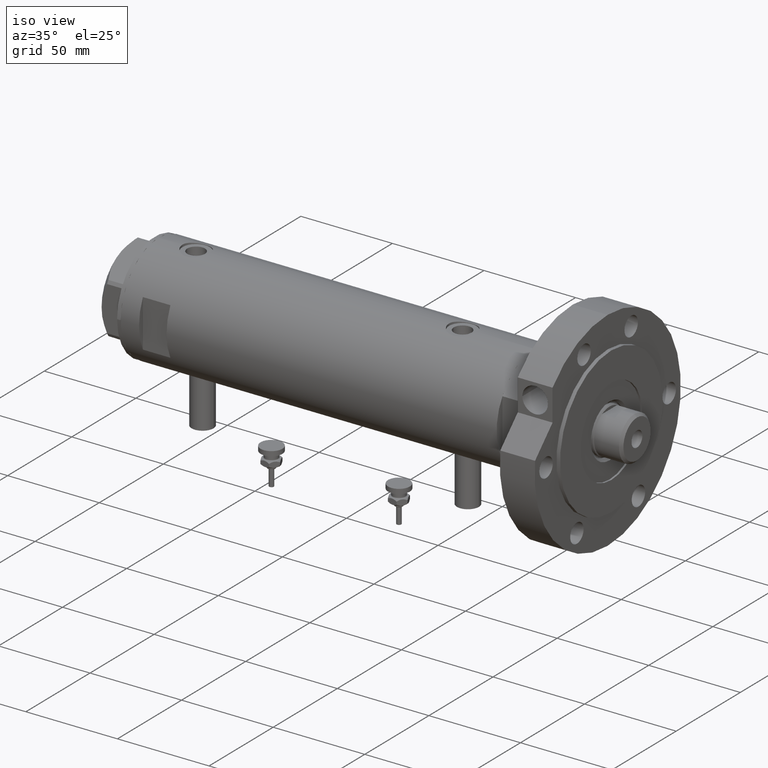
[diagram: clean part render]
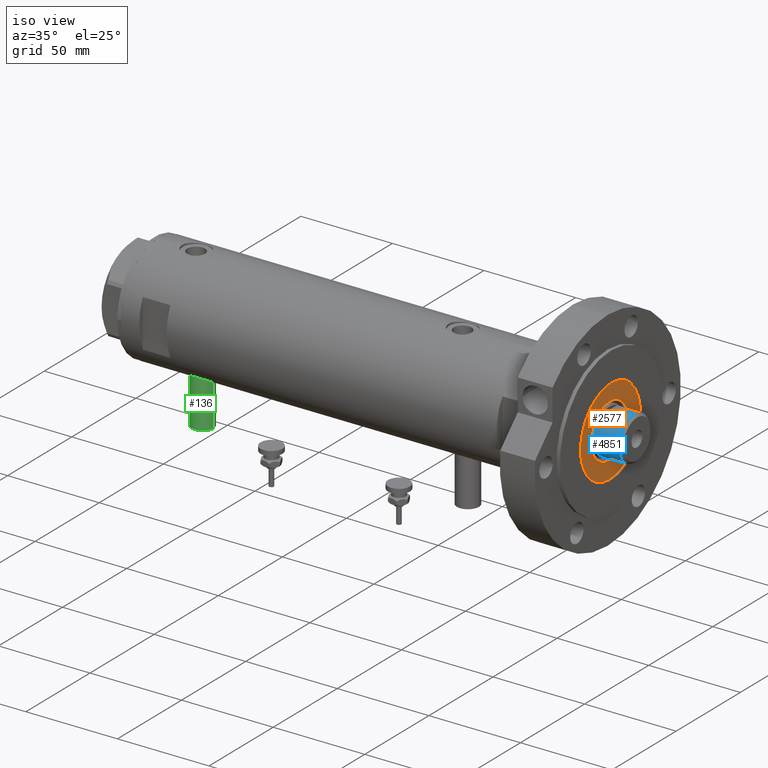
[diagram: same view with three faces highlighted in distinct colors, each labeled with its STEP entity id]
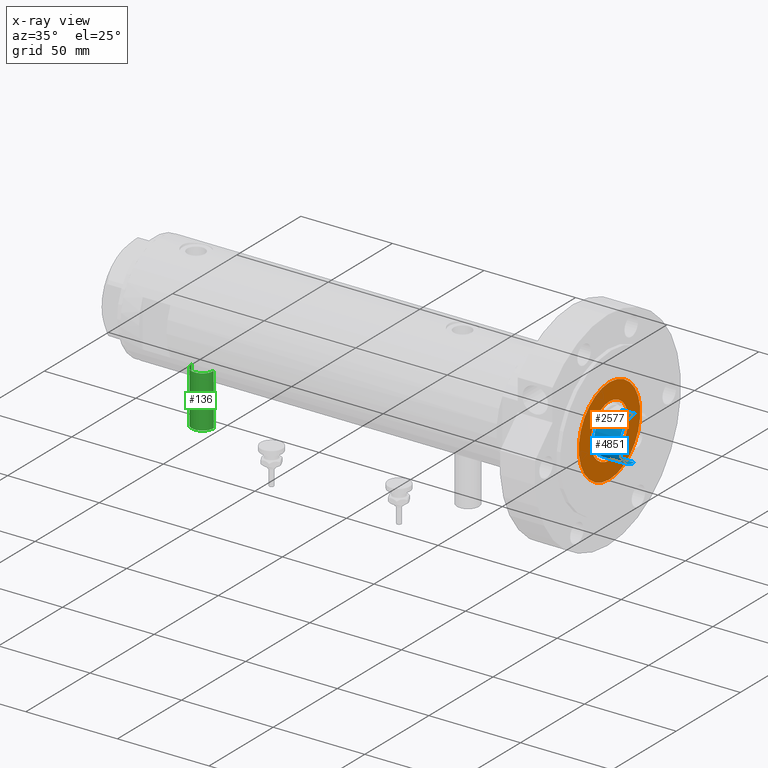
[diagram: x-ray of the same camera — body ghosted, the three highlighted faces saturated]
A machine part, iso view with three faces highlighted in distinct colors.
The next image is the same camera in x-ray (body ghosted, the three faces saturated) — at least one of them is partly hidden behind the body in this view.
Their STEP definitions:

[orange] entity #2577 — the highlighted planar face has unit normal (1, 0, -0).
#69 = FACE_BOUND ( 'NONE', #6298, .T. ) ;
#111 = DIRECTION ( 'NONE',  ( 0.000000000000000000, 0.000000000000000000, 1.000000000000000000 ) ) ;
#517 = PLANE ( 'NONE',  #988 ) ;
#565 = EDGE_CURVE ( 'NONE', #2335, #2028, #1961, .T. ) ;
#699 = DIRECTION ( 'NONE',  ( 1.000000000000000000, 0.000000000000000000, 0.000000000000000000 ) ) ;
#844 = CARTESIAN_POINT ( 'NONE',  ( 24.00000000000000355, 2.939152317953648289E-15, 41.00000000000000000 ) ) ;
#988 = AXIS2_PLACEMENT_3D ( 'NONE', #5710, #5972, #5130 ) ;
#1078 = CARTESIAN_POINT ( 'NONE',  ( 14.54999999999997939, 0.000000000000000000, 41.00000000000000000 ) ) ;
#1609 = DIRECTION ( 'NONE',  ( 1.000000000000000000, 0.000000000000000000, 0.000000000000000000 ) ) ;
#1865 = AXIS2_PLACEMENT_3D ( 'NONE', #2753, #3335, #3295 ) ;
#1961 = CIRCLE ( 'NONE', #4737, 24.00000000000000355 ) ;
#2028 = VERTEX_POINT ( 'NONE', #5642 ) ;
#2335 = VERTEX_POINT ( 'NONE', #844 ) ;
#2451 = CARTESIAN_POINT ( 'NONE',  ( 0.000000000000000000, 0.000000000000000000, 41.00000000000000000 ) ) ;
#2577 = ADVANCED_FACE ( 'NONE', ( #69, #5753 ), #517, .T. ) ;
#2691 = CIRCLE ( 'NONE', #3427, 24.00000000000000355 ) ;
#2753 = CARTESIAN_POINT ( 'NONE',  ( 0.000000000000000000, 0.000000000000000000, 41.00000000000000000 ) ) ;
#3295 = DIRECTION ( 'NONE',  ( 1.000000000000000000, 0.000000000000000000, 0.000000000000000000 ) ) ;
#3335 = DIRECTION ( 'NONE',  ( -0.000000000000000000, -0.000000000000000000, -1.000000000000000000 ) ) ;
#3427 = AXIS2_PLACEMENT_3D ( 'NONE', #5861, #5285, #5755 ) ;
#3844 = AXIS2_PLACEMENT_3D ( 'NONE', #5100, #5643, #1609 ) ;
#3905 = CARTESIAN_POINT ( 'NONE',  ( -14.54999999999997939, 1.781861092759396721E-15, 41.00000000000000000 ) ) ;
#4007 = EDGE_CURVE ( 'NONE', #2028, #2335, #2691, .T. ) ;
#4186 = CIRCLE ( 'NONE', #1865, 14.54999999999997939 ) ;
#4435 = CIRCLE ( 'NONE', #3844, 14.54999999999997939 ) ;
#4737 = AXIS2_PLACEMENT_3D ( 'NONE', #2451, #111, #699 ) ;
#5100 = CARTESIAN_POINT ( 'NONE',  ( 0.000000000000000000, 0.000000000000000000, 41.00000000000000000 ) ) ;
#5130 = DIRECTION ( 'NONE',  ( 1.000000000000000000, 0.000000000000000000, -0.000000000000000000 ) ) ;
#5285 = DIRECTION ( 'NONE',  ( 0.000000000000000000, 0.000000000000000000, 1.000000000000000000 ) ) ;
#5606 = EDGE_CURVE ( 'NONE', #5919, #7330, #4186, .T. ) ;
#5642 = CARTESIAN_POINT ( 'NONE',  ( -24.00000000000000355, 0.000000000000000000, 41.00000000000000000 ) ) ;
#5643 = DIRECTION ( 'NONE',  ( -0.000000000000000000, -0.000000000000000000, -1.000000000000000000 ) ) ;
#5710 = CARTESIAN_POINT ( 'NONE',  ( 0.000000000000000000, 0.000000000000000000, 41.00000000000000000 ) ) ;
#5753 = FACE_OUTER_BOUND ( 'NONE', #7180, .T. ) ;
#5755 = DIRECTION ( 'NONE',  ( 1.000000000000000000, 0.000000000000000000, 0.000000000000000000 ) ) ;
#5861 = CARTESIAN_POINT ( 'NONE',  ( 0.000000000000000000, 0.000000000000000000, 41.00000000000000000 ) ) ;
#5919 = VERTEX_POINT ( 'NONE', #1078 ) ;
#5958 = ORIENTED_EDGE ( 'NONE', *, *, #4007, .T. ) ;
#5972 = DIRECTION ( 'NONE',  ( 0.000000000000000000, 0.000000000000000000, 1.000000000000000000 ) ) ;
#6298 = EDGE_LOOP ( 'NONE', ( #6641, #6514 ) ) ;
#6299 = EDGE_CURVE ( 'NONE', #7330, #5919, #4435, .T. ) ;
#6514 = ORIENTED_EDGE ( 'NONE', *, *, #6299, .T. ) ;
#6641 = ORIENTED_EDGE ( 'NONE', *, *, #5606, .T. ) ;
#6686 = ORIENTED_EDGE ( 'NONE', *, *, #565, .T. ) ;
#7180 = EDGE_LOOP ( 'NONE', ( #5958, #6686 ) ) ;
#7330 = VERTEX_POINT ( 'NONE', #3905 ) ;

[blue] entity #4851 — the highlighted cylindrical surface (edge-blend (fillet) strip) has radius 12 mm, axis along (-1, -0, 0).
#61 = EDGE_LOOP ( 'NONE', ( #1084, #3789, #7439, #1050, #1327, #4008, #804, #7430 ) ) ;
#194 = DIRECTION ( 'NONE',  ( 1.000000000000000000, 0.000000000000000000, 0.000000000000000000 ) ) ;
#215 = DIRECTION ( 'NONE',  ( -1.000000000000000000, 0.000000000000000000, 0.000000000000000000 ) ) ;
#410 = AXIS2_PLACEMENT_3D ( 'NONE', #1462, #6005, #3794 ) ;
#758 = CIRCLE ( 'NONE', #5248, 12.00000000000000000 ) ;
#804 = ORIENTED_EDGE ( 'NONE', *, *, #3034, .F. ) ;
#836 = VERTEX_POINT ( 'NONE', #7053 ) ;
#847 = FACE_OUTER_BOUND ( 'NONE', #61, .T. ) ;
#861 = VERTEX_POINT ( 'NONE', #4904 ) ;
#891 = DIRECTION ( 'NONE',  ( -0.000000000000000000, -0.000000000000000000, -1.000000000000000000 ) ) ;
#992 = DIRECTION ( 'NONE',  ( 0.000000000000000000, 0.000000000000000000, 1.000000000000000000 ) ) ;
#1050 = ORIENTED_EDGE ( 'NONE', *, *, #6214, .T. ) ;
#1084 = ORIENTED_EDGE ( 'NONE', *, *, #5033, .F. ) ;
#1327 = ORIENTED_EDGE ( 'NONE', *, *, #2443, .T. ) ;
#1385 = EDGE_CURVE ( 'NONE', #4172, #3853, #7206, .T. ) ;
#1456 = CARTESIAN_POINT ( 'NONE',  ( 0.000000000000000000, 0.000000000000000000, 229.7000000000000171 ) ) ;
#1462 = CARTESIAN_POINT ( 'NONE',  ( 0.000000000000000000, 0.000000000000000000, 229.7000000000000171 ) ) ;
#1505 = AXIS2_PLACEMENT_3D ( 'NONE', #1456, #891, #215 ) ;
#1665 = DIRECTION ( 'NONE',  ( 0.000000000000000000, 0.000000000000000000, -1.000000000000000000 ) ) ;
#1812 = VERTEX_POINT ( 'NONE', #7201 ) ;
#1963 = VERTEX_POINT ( 'NONE', #5099 ) ;
#2045 = CARTESIAN_POINT ( 'NONE',  ( 0.000000000000000000, 0.000000000000000000, 229.7000000000000171 ) ) ;
#2087 = VECTOR ( 'NONE', #2888, 1000.000000000000000 ) ;
#2128 = CARTESIAN_POINT ( 'NONE',  ( 0.000000000000000000, 0.000000000000000000, 222.7000000000000171 ) ) ;
#2186 = DIRECTION ( 'NONE',  ( 1.000000000000000000, 0.000000000000000000, 0.000000000000000000 ) ) ;
#2290 = LINE ( 'NONE', #6378, #2087 ) ;
#2443 = EDGE_CURVE ( 'NONE', #1812, #861, #3347, .T. ) ;
#2482 = CIRCLE ( 'NONE', #410, 12.00000000000000178 ) ;
#2558 = VECTOR ( 'NONE', #4982, 1000.000000000000000 ) ;
#2888 = DIRECTION ( 'NONE',  ( -0.000000000000000000, -0.000000000000000000, -1.000000000000000000 ) ) ;
#3031 = AXIS2_PLACEMENT_3D ( 'NONE', #2045, #6676, #194 ) ;
#3034 = EDGE_CURVE ( 'NONE', #4172, #5781, #2290, .T. ) ;
#3347 = LINE ( 'NONE', #5594, #2558 ) ;
#3422 = VERTEX_POINT ( 'NONE', #6443 ) ;
#3709 = CARTESIAN_POINT ( 'NONE',  ( 12.00000000000000000, 1.469576158976823947E-15, 229.7000000000000171 ) ) ;
#3789 = ORIENTED_EDGE ( 'NONE', *, *, #6618, .T. ) ;
#3794 = DIRECTION ( 'NONE',  ( 1.000000000000000000, 0.000000000000000000, 0.000000000000000000 ) ) ;
#3813 = EDGE_CURVE ( 'NONE', #861, #5781, #758, .T. ) ;
#3853 = VERTEX_POINT ( 'NONE', #5905 ) ;
#3923 = CARTESIAN_POINT ( 'NONE',  ( 10.48861764008966446, -5.829999999999997407, 229.7000000000000171 ) ) ;
#3961 = AXIS2_PLACEMENT_3D ( 'NONE', #7429, #1665, #2186 ) ;
#4008 = ORIENTED_EDGE ( 'NONE', *, *, #3813, .T. ) ;
#4053 = VECTOR ( 'NONE', #4195, 1000.000000000000000 ) ;
#4172 = VERTEX_POINT ( 'NONE', #3923 ) ;
#4195 = DIRECTION ( 'NONE',  ( -0.000000000000000000, -0.000000000000000000, -1.000000000000000000 ) ) ;
#4238 = LINE ( 'NONE', #3709, #4053 ) ;
#4422 = DIRECTION ( 'NONE',  ( 1.000000000000000000, 0.000000000000000000, 0.000000000000000000 ) ) ;
#4851 = ADVANCED_FACE ( 'NONE', ( #847 ), #5494, .T. ) ;
#4904 = CARTESIAN_POINT ( 'NONE',  ( -10.48861764008966091, -5.830000000000078231, 222.7000000000000171 ) ) ;
#4982 = DIRECTION ( 'NONE',  ( -0.000000000000000000, -0.000000000000000000, -1.000000000000000000 ) ) ;
#5033 = EDGE_CURVE ( 'NONE', #1963, #3853, #4238, .T. ) ;
#5099 = CARTESIAN_POINT ( 'NONE',  ( 12.00000000000000000, 1.469576158976823947E-15, 236.3000000000000682 ) ) ;
#5248 = AXIS2_PLACEMENT_3D ( 'NONE', #2128, #992, #4422 ) ;
#5250 = CARTESIAN_POINT ( 'NONE',  ( -12.00000000000000000, 0.000000000000000000, 229.7000000000000171 ) ) ;
#5470 = CARTESIAN_POINT ( 'NONE',  ( 10.48861764008966269, -5.830000000000073790, 222.7000000000000171 ) ) ;
#5494 = CYLINDRICAL_SURFACE ( 'NONE', #1505, 12.00000000000000000 ) ;
#5594 = CARTESIAN_POINT ( 'NONE',  ( -10.48861764008966091, -5.830000000000000959, 229.7000000000000171 ) ) ;
#5781 = VERTEX_POINT ( 'NONE', #5470 ) ;
#5830 = DIRECTION ( 'NONE',  ( -0.000000000000000000, -0.000000000000000000, -1.000000000000000000 ) ) ;
#5905 = CARTESIAN_POINT ( 'NONE',  ( 12.00000000000000355, 1.469576158976824342E-15, 229.7000000000000171 ) ) ;
#6005 = DIRECTION ( 'NONE',  ( 0.000000000000000000, 0.000000000000000000, 1.000000000000000000 ) ) ;
#6214 = EDGE_CURVE ( 'NONE', #3422, #1812, #2482, .T. ) ;
#6265 = CIRCLE ( 'NONE', #3961, 12.00000000000000000 ) ;
#6378 = CARTESIAN_POINT ( 'NONE',  ( 10.48861764008966446, -5.829999999999997407, 229.7000000000000171 ) ) ;
#6396 = VECTOR ( 'NONE', #5830, 1000.000000000000000 ) ;
#6443 = CARTESIAN_POINT ( 'NONE',  ( -12.00000000000000355, 0.000000000000000000, 229.7000000000000171 ) ) ;
#6618 = EDGE_CURVE ( 'NONE', #1963, #836, #6265, .T. ) ;
#6676 = DIRECTION ( 'NONE',  ( 0.000000000000000000, 0.000000000000000000, 1.000000000000000000 ) ) ;
#7053 = CARTESIAN_POINT ( 'NONE',  ( -12.00000000000000000, 0.000000000000000000, 236.3000000000000682 ) ) ;
#7068 = LINE ( 'NONE', #5250, #6396 ) ;
#7201 = CARTESIAN_POINT ( 'NONE',  ( -10.48861764008966091, -5.830000000000003624, 229.7000000000000171 ) ) ;
#7206 = CIRCLE ( 'NONE', #3031, 12.00000000000000178 ) ;
#7429 = CARTESIAN_POINT ( 'NONE',  ( 0.000000000000000000, 0.000000000000000000, 236.3000000000000682 ) ) ;
#7430 = ORIENTED_EDGE ( 'NONE', *, *, #1385, .T. ) ;
#7439 = ORIENTED_EDGE ( 'NONE', *, *, #7477, .T. ) ;
#7477 = EDGE_CURVE ( 'NONE', #836, #3422, #7068, .T. ) ;

[green] entity #136 — the highlighted cylindrical surface (edge-blend (fillet) strip) has radius 6 mm, axis along (0, 0, 1).
#132 = LINE ( 'NONE', #178, #4029 ) ;
#136 = ADVANCED_FACE ( 'NONE', ( #6448 ), #816, .T. ) ;
#178 = CARTESIAN_POINT ( 'NONE',  ( -56.60000000000000142, 0.000000000000000000, 72.60000000000000853 ) ) ;
#562 = DIRECTION ( 'NONE',  ( -1.000000000000000000, 0.000000000000000000, 0.000000000000000000 ) ) ;
#816 = CYLINDRICAL_SURFACE ( 'NONE', #4015, 5.999999999999991118 ) ;
#961 = CARTESIAN_POINT ( 'NONE',  ( -28.30000000000000071, 0.000000000000000000, 78.60000000000000853 ) ) ;
#1352 = ORIENTED_EDGE ( 'NONE', *, *, #2517, .T. ) ;
#1924 = VERTEX_POINT ( 'NONE', #7239 ) ;
#1944 = ORIENTED_EDGE ( 'NONE', *, *, #2433, .F. ) ;
#2326 = VERTEX_POINT ( 'NONE', #3780 ) ;
#2341 = EDGE_CURVE ( 'NONE', #4377, #1924, #132, .T. ) ;
#2426 = CARTESIAN_POINT ( 'NONE',  ( -56.60000000000000142, 0.000000000000000000, 78.60000000000000853 ) ) ;
#2433 = EDGE_CURVE ( 'NONE', #5581, #2326, #6800, .T. ) ;
#2517 = EDGE_CURVE ( 'NONE', #1924, #2326, #4146, .T. ) ;
#2651 = CARTESIAN_POINT ( 'NONE',  ( -56.60000000000000142, 0.000000000000000000, 78.60000000000000853 ) ) ;
#2687 = DIRECTION ( 'NONE',  ( 1.000000000000000000, -0.000000000000000000, -0.000000000000000000 ) ) ;
#2692 = DIRECTION ( 'NONE',  ( 1.000000000000000000, -0.000000000000000000, -0.000000000000000000 ) ) ;
#2714 = AXIS2_PLACEMENT_3D ( 'NONE', #2426, #562, #5373 ) ;
#2729 = DIRECTION ( 'NONE',  ( -1.000000000000000000, 0.000000000000000000, 0.000000000000000000 ) ) ;
#3169 = AXIS2_PLACEMENT_3D ( 'NONE', #961, #2729, #3265 ) ;
#3265 = DIRECTION ( 'NONE',  ( 0.000000000000000000, 0.000000000000000000, 1.000000000000000000 ) ) ;
#3408 = CARTESIAN_POINT ( 'NONE',  ( -56.60000000000000142, 7.347880794884101001E-16, 84.59999999999999432 ) ) ;
#3661 = ORIENTED_EDGE ( 'NONE', *, *, #7440, .F. ) ;
#3672 = VECTOR ( 'NONE', #2687, 1000.000000000000000 ) ;
#3749 = DIRECTION ( 'NONE',  ( 1.000000000000000000, -0.000000000000000000, -0.000000000000000000 ) ) ;
#3780 = CARTESIAN_POINT ( 'NONE',  ( -28.30000000000000071, 7.347880794884101001E-16, 84.59999999999999432 ) ) ;
#4015 = AXIS2_PLACEMENT_3D ( 'NONE', #2651, #2692, #5066 ) ;
#4029 = VECTOR ( 'NONE', #3749, 1000.000000000000000 ) ;
#4146 = CIRCLE ( 'NONE', #3169, 5.999999999999991118 ) ;
#4377 = VERTEX_POINT ( 'NONE', #7544 ) ;
#5066 = DIRECTION ( 'NONE',  ( 0.000000000000000000, 0.000000000000000000, -1.000000000000000000 ) ) ;
#5373 = DIRECTION ( 'NONE',  ( 0.000000000000000000, 0.000000000000000000, 1.000000000000000000 ) ) ;
#5581 = VERTEX_POINT ( 'NONE', #3408 ) ;
#5646 = CIRCLE ( 'NONE', #2714, 5.999999999999991118 ) ;
#6448 = FACE_OUTER_BOUND ( 'NONE', #7004, .T. ) ;
#6800 = LINE ( 'NONE', #7406, #3672 ) ;
#7004 = EDGE_LOOP ( 'NONE', ( #1944, #3661, #7083, #1352 ) ) ;
#7083 = ORIENTED_EDGE ( 'NONE', *, *, #2341, .T. ) ;
#7239 = CARTESIAN_POINT ( 'NONE',  ( -28.30000000000000071, 0.000000000000000000, 72.60000000000000853 ) ) ;
#7406 = CARTESIAN_POINT ( 'NONE',  ( -56.60000000000000142, 7.347880794884104945E-16, 84.59999999999999432 ) ) ;
#7440 = EDGE_CURVE ( 'NONE', #4377, #5581, #5646, .T. ) ;
#7544 = CARTESIAN_POINT ( 'NONE',  ( -56.60000000000000142, 0.000000000000000000, 72.60000000000000853 ) ) ;